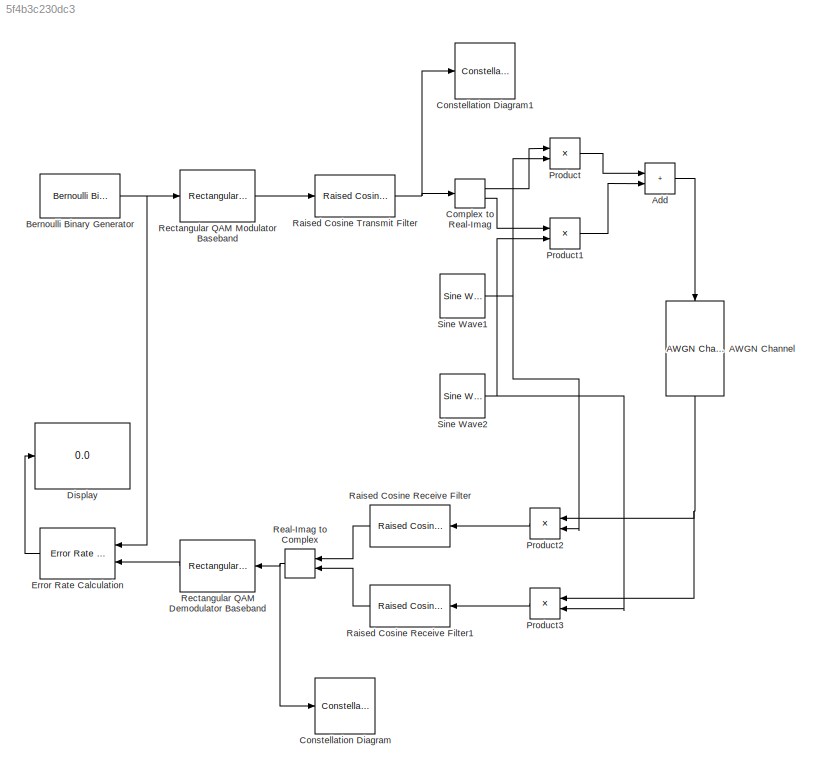
MODEL slx_5f4b3c230dc3
KIND model
CONFIG AbsTol = auto
CONFIG EnableMultiTasking = off
CONFIG FixedStep = auto
CONFIG MaxStep = auto
CONFIG MinStep = auto
CONFIG RelTol = 1e-3
CONFIG SampleTimeConstraint = Unconstrained
CONFIG Solver = VariableStepAuto
CONFIG SolverName = VariableStepAuto
CONFIG StartTime = 0.0
CONFIG StopTime = 10.0
BLOCK [Reference] AWGN Channel  REF=commchan3/AWGN
Channel
  NameLocation = left
  Ports = [1, 1]
  SourceBlock = commchan3/AWGN\nChannel
  SourceProductBaseCode = CM
  SourceType = AWGN Channel
  UserDataPersistent = on
BLOCK [Sum] Add
  IconShape = rectangular
  Ports = [2, 1]
BLOCK [Reference] Bernoulli Binary Generator  REF=commrandsrc3/Bernoulli Binary
Generator
  Ports = [0, 1]
  SourceBlock = commrandsrc3/Bernoulli Binary\nGenerator
  SourceProductBaseCode = CM
  SourceType = Bernoulli Binary Generator
BLOCK [ComplexToRealImag] Complex to Real-Imag
  Ports = [1, 2]
BLOCK [ConstellationDiagram] Constellation Diagram
  Ports = [1]
  ScopeSpecificationString = comm.scopes.ConstellationDiagramBlockCfg('CurrentConfiguration', extmgr.ConfigurationSet(extmgr.Configuration('Core','General UI',true),extmgr.Configuration('Core','Source UI',true),extmgr.Configuration('Sources','WiredSimulink',true),extmgr.Configuration('Visuals','Constellation',true,'MinYLim','-2.7422','MaxYLim','2.7361','MinXLim','-2.7422','MaxXLim','2.7361','AxesProperties',struct('Color',[0 ...<+755ch>
BLOCK [ConstellationDiagram] Constellation Diagram1
  Ports = [1]
  ScopeSpecificationString = comm.scopes.ConstellationDiagramBlockCfg('CurrentConfiguration', extmgr.ConfigurationSet(extmgr.Configuration('Core','General UI',true),extmgr.Configuration('Core','Source UI',true),extmgr.Configuration('Sources','WiredSimulink',true),extmgr.Configuration('Visuals','Constellation',true,'MinYLim','-2.1307','MaxYLim','2.0533','MinXLim','-2.1307','MaxXLim','2.0533','AxesProperties',struct('Color',[0 ...<+752ch>
BLOCK [Display] Display
  Decimation = 1
  Ports = [1]
BLOCK [Reference] Error Rate Calculation  REF=commsink2/Error Rate
Calculation
  NameLocation = top
  Ports = [2, 1]
  SourceBlock = commsink2/Error Rate\nCalculation
  SourceProductBaseCode = CM
  SourceType = Error Rate Calculation
BLOCK [Product] Product
  Ports = [2, 1]
BLOCK [Product] Product1
  Ports = [2, 1]
BLOCK [Product] Product2
  NameLocation = top
  Ports = [2, 1]
BLOCK [Product] Product3
  NameLocation = top
  Ports = [2, 1]
BLOCK [Reference] Raised Cosine Receive Filter  REF=commfilt2/Raised Cosine
Receive Filter
  NameLocation = top
  Ports = [1, 1]
  SourceBlock = commfilt2/Raised Cosine\nReceive Filter
  SourceProductBaseCode = CM
  SourceType = Raised Cosine Receive Filter
BLOCK [Reference] Raised Cosine Receive Filter1  REF=commfilt2/Raised Cosine
Receive Filter
  NameLocation = top
  Ports = [1, 1]
  SourceBlock = commfilt2/Raised Cosine\nReceive Filter
  SourceProductBaseCode = CM
  SourceType = Raised Cosine Receive Filter
BLOCK [Reference] Raised Cosine Transmit Filter  REF=commfilt2/Raised Cosine
Transmit Filter
  Ports = [1, 1]
  SourceBlock = commfilt2/Raised Cosine\nTransmit Filter
  SourceProductBaseCode = CM
  SourceType = Raised Cosine Transmit Filter
BLOCK [RealImagToComplex] Real-Imag to Complex
  NameLocation = top
  Ports = [2, 1]
BLOCK [Reference] Rectangular QAM Demodulator Baseband  REF=commdigbbndam3/Rectangular QAM
Demodulator
Baseband
  NameLocation = top
  Ports = [1, 1]
  SourceBlock = commdigbbndam3/Rectangular QAM\nDemodulator\nBaseband
  SourceProductBaseCode = CM
  SourceType = Rectangular QAM Demodulator Baseband
BLOCK [Reference] Rectangular QAM Modulator Baseband  REF=commdigbbndam3/Rectangular QAM
Modulator
Baseband
  Ports = [1, 1]
  SourceBlock = commdigbbndam3/Rectangular QAM\nModulator\nBaseband
  SourceProductBaseCode = CM
  SourceType = Rectangular QAM Modulator Baseband
BLOCK [Reference] Sine Wave1  REF=dspsrcs4/Sine Wave
  Ports = [0, 1]
  SourceBlock = dspsrcs4/Sine Wave
  SourceProductBaseCode = DS
  SourceType = Sine Wave
BLOCK [Reference] Sine Wave2  REF=dspsrcs4/Sine Wave
  Ports = [0, 1]
  SourceBlock = dspsrcs4/Sine Wave
  SourceProductBaseCode = DS
  SourceType = Sine Wave
NET AWGN Channel:1 -> Product2:1, Product3:1
LINE Add:1 -> AWGN Channel:1
NET Bernoulli Binary Generator:1 -> Error Rate Calculation:1, Rectangular QAM Modulator Baseband:1
LINE Complex to Real-Imag:1 -> Product:1
LINE Complex to Real-Imag:2 -> Product1:1
LINE Error Rate Calculation:1 -> Display:1
LINE Product1:1 -> Add:2
LINE Product2:1 -> Raised Cosine Receive Filter:1
LINE Product3:1 -> Raised Cosine Receive Filter1:1
LINE Product:1 -> Add:1
LINE Raised Cosine Receive Filter1:1 -> Real-Imag to Complex:2
LINE Raised Cosine Receive Filter:1 -> Real-Imag to Complex:1
NET Raised Cosine Transmit Filter:1 -> Complex to Real-Imag:1, Constellation Diagram1:1
NET Real-Imag to Complex:1 -> Constellation Diagram:1, Rectangular QAM Demodulator Baseband:1
LINE Rectangular QAM Demodulator Baseband:1 -> Error Rate Calculation:2
LINE Rectangular QAM Modulator Baseband:1 -> Raised Cosine Transmit Filter:1
NET Sine Wave1:1 -> Product2:2, Product:2
NET Sine Wave2:1 -> Product1:2, Product3:2
note: NET lines group one-source signal fan-out (src -> all destinations, sorted); 1:1 wires keep LINE
